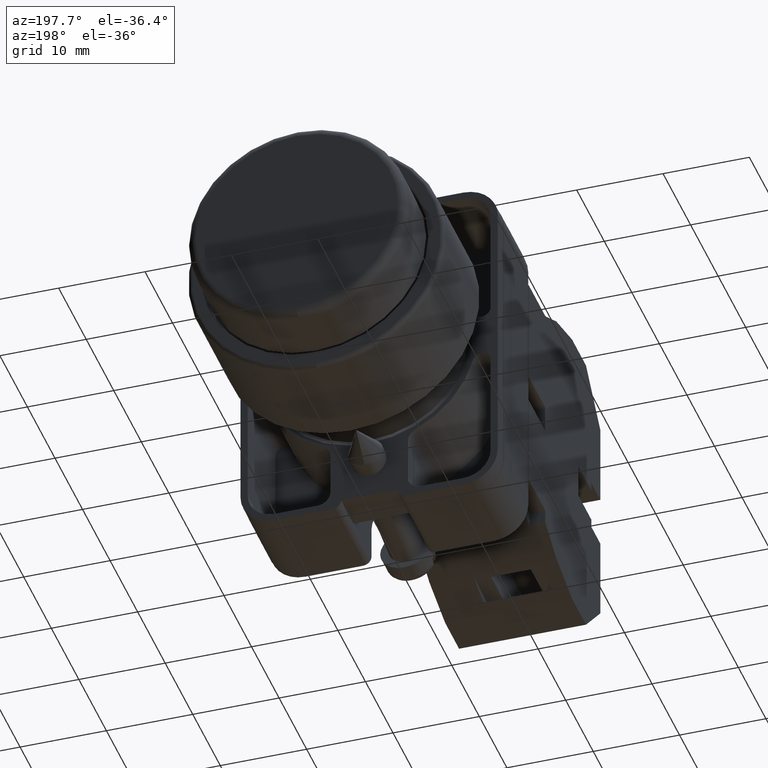
[diagram: clean part render]
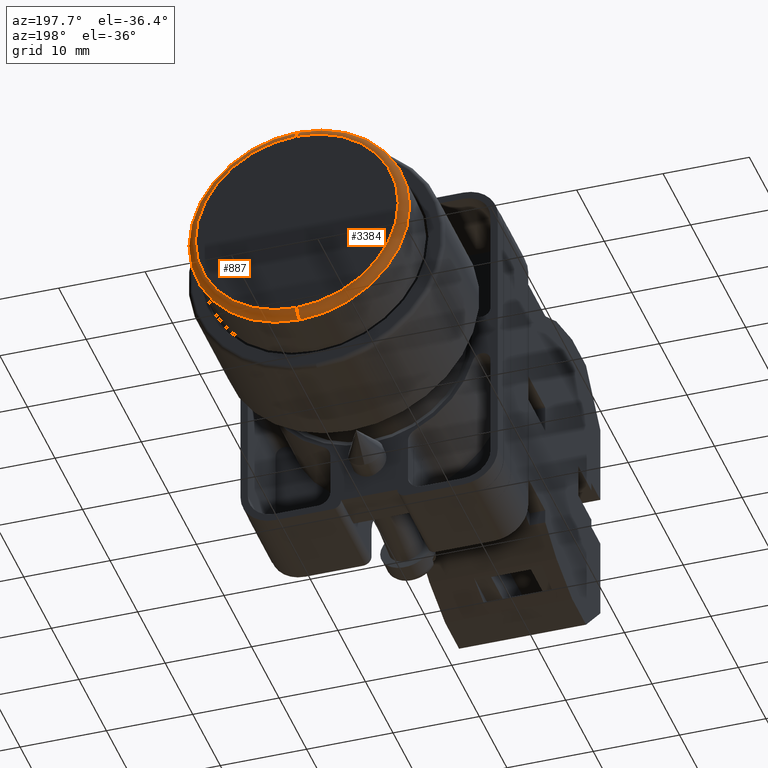
[diagram: same view with one multi-face feature highlighted, each face labeled with its STEP entity id]
A machine part, auxiliary view. The highlighted faces form ONE feature: a constant-radius fillet chain: 2 tangent blend faces with common blend radius 1 mm. The faces share edges in the B-rep.
Their STEP definitions:
[1] entity #887 (Torus):
#91 = TOROIDAL_SURFACE ( 'NONE', #12729, 0.4625984251968504000, 0.03937007874015748000 ) ;
#206 = DIRECTION ( 'NONE',  ( 1.000000000000000000, -0.0000000000000000000, 1.224646799147353200E-016 ) ) ;
#307 = VERTEX_POINT ( 'NONE', #1338 ) ;
#335 = CARTESIAN_POINT ( 'NONE',  ( 0.0000000000000000000, 1.177165354330708600, 0.4625984251968504000 ) ) ;
#555 = ORIENTED_EDGE ( 'NONE', *, *, #3122, .F. ) ;
#887 = ADVANCED_FACE ( 'NONE', ( #3018 ), #91, .T. ) ;
#1314 = DIRECTION ( 'NONE',  ( 0.0000000000000000000, 0.0000000000000000000, 1.000000000000000000 ) ) ;
#1338 = CARTESIAN_POINT ( 'NONE',  ( 6.147341216192422300E-017, 1.177165354330708600, -0.5019685039370078700 ) ) ;
#1859 = VERTEX_POINT ( 'NONE', #7508 ) ;
#2402 = ORIENTED_EDGE ( 'NONE', *, *, #3188, .T. ) ;
#2500 = CIRCLE ( 'NONE', #7460, 0.03937007874015751400 ) ;
#3018 = FACE_OUTER_BOUND ( 'NONE', #5935, .T. ) ;
#3102 = DIRECTION ( 'NONE',  ( 0.0000000000000000000, 1.000000000000000000, 0.0000000000000000000 ) ) ;
#3122 = EDGE_CURVE ( 'NONE', #7084, #7993, #8705, .T. ) ;
#3130 = CIRCLE ( 'NONE', #6125, 0.03937007874015751400 ) ;
#3135 = DIRECTION ( 'NONE',  ( -0.0000000000000000000, -1.000000000000000000, -0.0000000000000000000 ) ) ;
#3188 = EDGE_CURVE ( 'NONE', #307, #7993, #3130, .T. ) ;
#3287 = EDGE_CURVE ( 'NONE', #1859, #7084, #2500, .T. ) ;
#3958 = EDGE_CURVE ( 'NONE', #307, #1859, #4043, .T. ) ;
#4043 = CIRCLE ( 'NONE', #8711, 0.5019685039370078700 ) ;
#4590 = ORIENTED_EDGE ( 'NONE', *, *, #3958, .F. ) ;
#4815 = AXIS2_PLACEMENT_3D ( 'NONE', #9024, #3102, #10004 ) ;
#5935 = EDGE_LOOP ( 'NONE', ( #4590, #2402, #555, #10651 ) ) ;
#6118 = CARTESIAN_POINT ( 'NONE',  ( 5.665196807079291400E-017, 1.177165354330708600, -0.4625984251968504000 ) ) ;
#6125 = AXIS2_PLACEMENT_3D ( 'NONE', #6118, #206, #7118 ) ;
#6375 = DIRECTION ( 'NONE',  ( 0.0000000000000000000, 1.000000000000000000, 0.0000000000000000000 ) ) ;
#7084 = VERTEX_POINT ( 'NONE', #8129 ) ;
#7118 = DIRECTION ( 'NONE',  ( 1.224646799147351500E-016, 0.0000000000000000000, -1.000000000000000000 ) ) ;
#7241 = DIRECTION ( 'NONE',  ( -1.000000000000000000, 0.0000000000000000000, 0.0000000000000000000 ) ) ;
#7364 = DIRECTION ( 'NONE',  ( 0.0000000000000000000, 0.0000000000000000000, 1.000000000000000000 ) ) ;
#7460 = AXIS2_PLACEMENT_3D ( 'NONE', #335, #7241, #1314 ) ;
#7508 = CARTESIAN_POINT ( 'NONE',  ( 0.0000000000000000000, 1.177165354330708600, 0.5019685039370078700 ) ) ;
#7993 = VERTEX_POINT ( 'NONE', #8754 ) ;
#8129 = CARTESIAN_POINT ( 'NONE',  ( 0.0000000000000000000, 1.216535433070866000, 0.4625984251968504000 ) ) ;
#8322 = CARTESIAN_POINT ( 'NONE',  ( 0.0000000000000000000, 1.177165354330708600, 0.0000000000000000000 ) ) ;
#8705 = CIRCLE ( 'NONE', #4815, 0.4625984251968504000 ) ;
#8711 = AXIS2_PLACEMENT_3D ( 'NONE', #9053, #3135, #10045 ) ;
#8754 = CARTESIAN_POINT ( 'NONE',  ( 5.906269011635857500E-017, 1.216535433070866000, -0.4625984251968504000 ) ) ;
#9024 = CARTESIAN_POINT ( 'NONE',  ( 0.0000000000000000000, 1.216535433070866000, 0.0000000000000000000 ) ) ;
#9053 = CARTESIAN_POINT ( 'NONE',  ( 0.0000000000000000000, 1.177165354330708600, 0.0000000000000000000 ) ) ;
#10004 = DIRECTION ( 'NONE',  ( 0.0000000000000000000, 0.0000000000000000000, 1.000000000000000000 ) ) ;
#10045 = DIRECTION ( 'NONE',  ( 0.0000000000000000000, 0.0000000000000000000, 1.000000000000000000 ) ) ;
#10651 = ORIENTED_EDGE ( 'NONE', *, *, #3287, .F. ) ;
#12729 = AXIS2_PLACEMENT_3D ( 'NONE', #8322, #6375, #7364 ) ;
[2] entity #3384 (Torus):
#206 = DIRECTION ( 'NONE',  ( 1.000000000000000000, -0.0000000000000000000, 1.224646799147353200E-016 ) ) ;
#307 = VERTEX_POINT ( 'NONE', #1338 ) ;
#335 = CARTESIAN_POINT ( 'NONE',  ( 0.0000000000000000000, 1.177165354330708600, 0.4625984251968504000 ) ) ;
#743 = ORIENTED_EDGE ( 'NONE', *, *, #3188, .F. ) ;
#1304 = DIRECTION ( 'NONE',  ( -0.0000000000000000000, -1.000000000000000000, -0.0000000000000000000 ) ) ;
#1314 = DIRECTION ( 'NONE',  ( 0.0000000000000000000, 0.0000000000000000000, 1.000000000000000000 ) ) ;
#1338 = CARTESIAN_POINT ( 'NONE',  ( 6.147341216192422300E-017, 1.177165354330708600, -0.5019685039370078700 ) ) ;
#1512 = CARTESIAN_POINT ( 'NONE',  ( 0.0000000000000000000, 1.216535433070866000, 0.0000000000000000000 ) ) ;
#1647 = EDGE_CURVE ( 'NONE', #1859, #307, #2393, .T. ) ;
#1859 = VERTEX_POINT ( 'NONE', #7508 ) ;
#2393 = CIRCLE ( 'NONE', #11956, 0.5019685039370078700 ) ;
#2431 = DIRECTION ( 'NONE',  ( 0.0000000000000000000, 0.0000000000000000000, 1.000000000000000000 ) ) ;
#2500 = CIRCLE ( 'NONE', #7460, 0.03937007874015751400 ) ;
#2511 = DIRECTION ( 'NONE',  ( 0.0000000000000000000, 0.0000000000000000000, 1.000000000000000000 ) ) ;
#2553 = AXIS2_PLACEMENT_3D ( 'NONE', #3405, #8377, #2431 ) ;
#3130 = CIRCLE ( 'NONE', #6125, 0.03937007874015751400 ) ;
#3188 = EDGE_CURVE ( 'NONE', #307, #7993, #3130, .T. ) ;
#3287 = EDGE_CURVE ( 'NONE', #1859, #7084, #2500, .T. ) ;
#3384 = ADVANCED_FACE ( 'NONE', ( #3910 ), #11783, .T. ) ;
#3405 = CARTESIAN_POINT ( 'NONE',  ( 0.0000000000000000000, 1.177165354330708600, 0.0000000000000000000 ) ) ;
#3910 = FACE_OUTER_BOUND ( 'NONE', #7409, .T. ) ;
#4465 = ORIENTED_EDGE ( 'NONE', *, *, #3287, .T. ) ;
#6118 = CARTESIAN_POINT ( 'NONE',  ( 5.665196807079291400E-017, 1.177165354330708600, -0.4625984251968504000 ) ) ;
#6125 = AXIS2_PLACEMENT_3D ( 'NONE', #6118, #206, #7118 ) ;
#6776 = CIRCLE ( 'NONE', #11552, 0.4625984251968504000 ) ;
#6795 = EDGE_CURVE ( 'NONE', #7993, #7084, #6776, .T. ) ;
#6923 = ORIENTED_EDGE ( 'NONE', *, *, #6795, .F. ) ;
#7084 = VERTEX_POINT ( 'NONE', #8129 ) ;
#7118 = DIRECTION ( 'NONE',  ( 1.224646799147351500E-016, 0.0000000000000000000, -1.000000000000000000 ) ) ;
#7228 = CARTESIAN_POINT ( 'NONE',  ( 0.0000000000000000000, 1.177165354330708600, 0.0000000000000000000 ) ) ;
#7241 = DIRECTION ( 'NONE',  ( -1.000000000000000000, 0.0000000000000000000, 0.0000000000000000000 ) ) ;
#7409 = EDGE_LOOP ( 'NONE', ( #743, #10506, #4465, #6923 ) ) ;
#7460 = AXIS2_PLACEMENT_3D ( 'NONE', #335, #7241, #1314 ) ;
#7508 = CARTESIAN_POINT ( 'NONE',  ( 0.0000000000000000000, 1.177165354330708600, 0.5019685039370078700 ) ) ;
#7993 = VERTEX_POINT ( 'NONE', #8754 ) ;
#8129 = CARTESIAN_POINT ( 'NONE',  ( 0.0000000000000000000, 1.216535433070866000, 0.4625984251968504000 ) ) ;
#8239 = DIRECTION ( 'NONE',  ( 0.0000000000000000000, 0.0000000000000000000, 1.000000000000000000 ) ) ;
#8377 = DIRECTION ( 'NONE',  ( 0.0000000000000000000, 1.000000000000000000, 0.0000000000000000000 ) ) ;
#8445 = DIRECTION ( 'NONE',  ( 0.0000000000000000000, 1.000000000000000000, 0.0000000000000000000 ) ) ;
#8754 = CARTESIAN_POINT ( 'NONE',  ( 5.906269011635857500E-017, 1.216535433070866000, -0.4625984251968504000 ) ) ;
#10506 = ORIENTED_EDGE ( 'NONE', *, *, #1647, .F. ) ;
#11552 = AXIS2_PLACEMENT_3D ( 'NONE', #1512, #8445, #2511 ) ;
#11783 = TOROIDAL_SURFACE ( 'NONE', #2553, 0.4625984251968504000, 0.03937007874015748000 ) ;
#11956 = AXIS2_PLACEMENT_3D ( 'NONE', #7228, #1304, #8239 ) ;